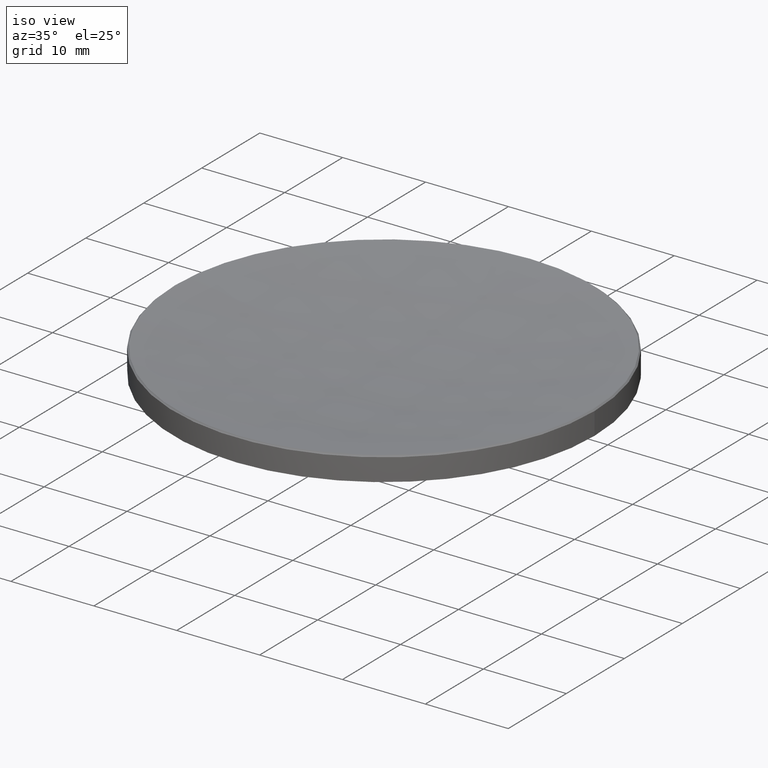
[diagram: clean part render]
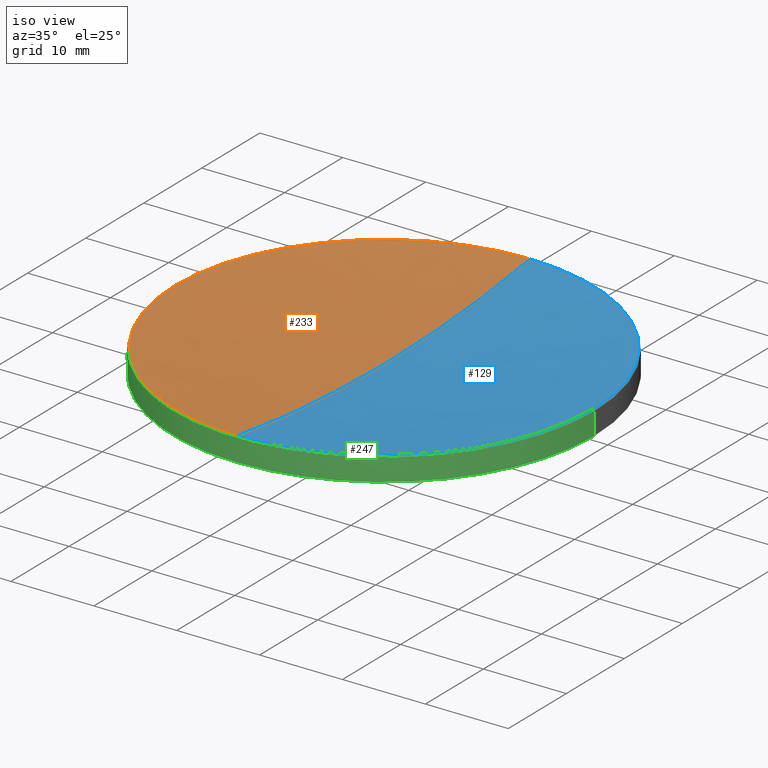
[diagram: same view with three faces highlighted in distinct colors, each labeled with its STEP entity id]
A machine part, iso view with three faces highlighted in distinct colors.
Their STEP definitions:

[orange] entity #233 — the highlighted spherical surface has radius 171.6 mm.
#5 = DIRECTION ( 'NONE',  ( 1.000000000000000000, 0.000000000000000000, 0.000000000000000000 ) ) ;
#48 = CARTESIAN_POINT ( 'NONE',  ( -25.22595727592940662, 0.000000000000000000, 15.87404272407055927 ) ) ;
#50 = CIRCLE ( 'NONE', #197, 171.5999999999999659 ) ;
#55 = DIRECTION ( 'NONE',  ( 0.000000000000000000, 1.000000000000000000, 0.000000000000000000 ) ) ;
#59 = ORIENTED_EDGE ( 'NONE', *, *, #227, .T. ) ;
#71 = DIRECTION ( 'NONE',  ( -1.000000000000000000, 1.224646799147353207E-16, 0.000000000000000000 ) ) ;
#76 = CIRCLE ( 'NONE', #277, 171.5999999999999659 ) ;
#87 = ORIENTED_EDGE ( 'NONE', *, *, #222, .T. ) ;
#91 = DIRECTION ( 'NONE',  ( -0.000000000000000000, -0.000000000000000000, 1.000000000000000000 ) ) ;
#94 = CARTESIAN_POINT ( 'NONE',  ( 0.000000000000000000, 0.000000000000000000, 15.87404272407055927 ) ) ;
#95 = DIRECTION ( 'NONE',  ( -1.224646799147353207E-16, -1.000000000000000000, 0.000000000000000000 ) ) ;
#103 = CIRCLE ( 'NONE', #136, 25.22595727592940662 ) ;
#116 = EDGE_CURVE ( 'NONE', #274, #215, #103, .T. ) ;
#117 = CIRCLE ( 'NONE', #150, 25.22595727592940662 ) ;
#118 = CARTESIAN_POINT ( 'NONE',  ( 0.000000000000000000, 0.000000000000000000, 185.6097522242018840 ) ) ;
#126 = ORIENTED_EDGE ( 'NONE', *, *, #116, .T. ) ;
#135 = DIRECTION ( 'NONE',  ( -1.000000000000000000, 0.000000000000000000, 0.000000000000000000 ) ) ;
#136 = AXIS2_PLACEMENT_3D ( 'NONE', #196, #91, #5 ) ;
#141 = ORIENTED_EDGE ( 'NONE', *, *, #157, .F. ) ;
#150 = AXIS2_PLACEMENT_3D ( 'NONE', #94, #170, #270 ) ;
#157 = EDGE_CURVE ( 'NONE', #273, #251, #50, .T. ) ;
#170 = DIRECTION ( 'NONE',  ( -0.000000000000000000, -0.000000000000000000, 1.000000000000000000 ) ) ;
#176 = DIRECTION ( 'NONE',  ( 0.000000000000000000, 0.000000000000000000, -1.000000000000000000 ) ) ;
#196 = CARTESIAN_POINT ( 'NONE',  ( 0.000000000000000000, 0.000000000000000000, 15.87404272407055927 ) ) ;
#197 = AXIS2_PLACEMENT_3D ( 'NONE', #281, #71, #95 ) ;
#203 = CARTESIAN_POINT ( 'NONE',  ( 0.000000000000000000, 1.050746953668428865E-14, 14.00975222420192168 ) ) ;
#205 = CARTESIAN_POINT ( 'NONE',  ( 0.000000000000000000, 25.22595727592939951, 15.87404272407055927 ) ) ;
#215 = VERTEX_POINT ( 'NONE', #48 ) ;
#221 = SPHERICAL_SURFACE ( 'NONE', #267, 171.5999999999999659 ) ;
#222 = EDGE_CURVE ( 'NONE', #215, #251, #117, .T. ) ;
#223 = CARTESIAN_POINT ( 'NONE',  ( 0.000000000000000000, 0.000000000000000000, 185.6097522242018840 ) ) ;
#224 = CARTESIAN_POINT ( 'NONE',  ( -3.089288783339482875E-15, -25.22595727592939951, 15.87404272407055927 ) ) ;
#227 = EDGE_CURVE ( 'NONE', #273, #274, #76, .T. ) ;
#233 = ADVANCED_FACE ( 'NONE', ( #248 ), #221, .F. ) ;
#246 = DIRECTION ( 'NONE',  ( 1.000000000000000000, 0.000000000000000000, 0.000000000000000000 ) ) ;
#248 = FACE_OUTER_BOUND ( 'NONE', #271, .T. ) ;
#251 = VERTEX_POINT ( 'NONE', #224 ) ;
#267 = AXIS2_PLACEMENT_3D ( 'NONE', #223, #135, #55 ) ;
#270 = DIRECTION ( 'NONE',  ( 1.000000000000000000, 0.000000000000000000, 0.000000000000000000 ) ) ;
#271 = EDGE_LOOP ( 'NONE', ( #141, #59, #126, #87 ) ) ;
#273 = VERTEX_POINT ( 'NONE', #203 ) ;
#274 = VERTEX_POINT ( 'NONE', #205 ) ;
#277 = AXIS2_PLACEMENT_3D ( 'NONE', #118, #246, #176 ) ;
#281 = CARTESIAN_POINT ( 'NONE',  ( 0.000000000000000000, 0.000000000000000000, 185.6097522242018840 ) ) ;

[blue] entity #129 — the highlighted spherical surface has radius 171.6 mm.
#2 = CARTESIAN_POINT ( 'NONE',  ( 25.22595727592940662, 3.099945826586880264E-15, 15.87404272407055927 ) ) ;
#17 = FACE_OUTER_BOUND ( 'NONE', #31, .T. ) ;
#18 = DIRECTION ( 'NONE',  ( 1.000000000000000000, 0.000000000000000000, 0.000000000000000000 ) ) ;
#29 = AXIS2_PLACEMENT_3D ( 'NONE', #110, #93, #18 ) ;
#31 = EDGE_LOOP ( 'NONE', ( #177, #228, #146, #86 ) ) ;
#50 = CIRCLE ( 'NONE', #197, 171.5999999999999659 ) ;
#65 = DIRECTION ( 'NONE',  ( -0.000000000000000000, -0.000000000000000000, 1.000000000000000000 ) ) ;
#71 = DIRECTION ( 'NONE',  ( -1.000000000000000000, 1.224646799147353207E-16, 0.000000000000000000 ) ) ;
#76 = CIRCLE ( 'NONE', #277, 171.5999999999999659 ) ;
#86 = ORIENTED_EDGE ( 'NONE', *, *, #92, .T. ) ;
#90 = CARTESIAN_POINT ( 'NONE',  ( 0.000000000000000000, 0.000000000000000000, 15.87404272407055927 ) ) ;
#92 = EDGE_CURVE ( 'NONE', #184, #274, #257, .T. ) ;
#93 = DIRECTION ( 'NONE',  ( -0.000000000000000000, -0.000000000000000000, 1.000000000000000000 ) ) ;
#95 = DIRECTION ( 'NONE',  ( -1.224646799147353207E-16, -1.000000000000000000, 0.000000000000000000 ) ) ;
#110 = CARTESIAN_POINT ( 'NONE',  ( 0.000000000000000000, 0.000000000000000000, 15.87404272407055927 ) ) ;
#118 = CARTESIAN_POINT ( 'NONE',  ( 0.000000000000000000, 0.000000000000000000, 185.6097522242018840 ) ) ;
#122 = AXIS2_PLACEMENT_3D ( 'NONE', #90, #65, #219 ) ;
#129 = ADVANCED_FACE ( 'NONE', ( #17 ), #217, .F. ) ;
#139 = AXIS2_PLACEMENT_3D ( 'NONE', #239, #264, #149 ) ;
#145 = EDGE_CURVE ( 'NONE', #251, #184, #168, .T. ) ;
#146 = ORIENTED_EDGE ( 'NONE', *, *, #145, .T. ) ;
#149 = DIRECTION ( 'NONE',  ( 0.000000000000000000, 1.000000000000000000, 0.000000000000000000 ) ) ;
#157 = EDGE_CURVE ( 'NONE', #273, #251, #50, .T. ) ;
#168 = CIRCLE ( 'NONE', #29, 25.22595727592940662 ) ;
#176 = DIRECTION ( 'NONE',  ( 0.000000000000000000, 0.000000000000000000, -1.000000000000000000 ) ) ;
#177 = ORIENTED_EDGE ( 'NONE', *, *, #227, .F. ) ;
#184 = VERTEX_POINT ( 'NONE', #2 ) ;
#197 = AXIS2_PLACEMENT_3D ( 'NONE', #281, #71, #95 ) ;
#203 = CARTESIAN_POINT ( 'NONE',  ( 0.000000000000000000, 1.050746953668428865E-14, 14.00975222420192168 ) ) ;
#205 = CARTESIAN_POINT ( 'NONE',  ( 0.000000000000000000, 25.22595727592939951, 15.87404272407055927 ) ) ;
#217 = SPHERICAL_SURFACE ( 'NONE', #139, 171.5999999999999659 ) ;
#219 = DIRECTION ( 'NONE',  ( 1.000000000000000000, 0.000000000000000000, 0.000000000000000000 ) ) ;
#224 = CARTESIAN_POINT ( 'NONE',  ( -3.089288783339482875E-15, -25.22595727592939951, 15.87404272407055927 ) ) ;
#227 = EDGE_CURVE ( 'NONE', #273, #274, #76, .T. ) ;
#228 = ORIENTED_EDGE ( 'NONE', *, *, #157, .T. ) ;
#239 = CARTESIAN_POINT ( 'NONE',  ( 0.000000000000000000, 0.000000000000000000, 185.6097522242018840 ) ) ;
#246 = DIRECTION ( 'NONE',  ( 1.000000000000000000, 0.000000000000000000, 0.000000000000000000 ) ) ;
#251 = VERTEX_POINT ( 'NONE', #224 ) ;
#257 = CIRCLE ( 'NONE', #122, 25.22595727592940662 ) ;
#264 = DIRECTION ( 'NONE',  ( -1.000000000000000000, 0.000000000000000000, 0.000000000000000000 ) ) ;
#273 = VERTEX_POINT ( 'NONE', #203 ) ;
#274 = VERTEX_POINT ( 'NONE', #205 ) ;
#277 = AXIS2_PLACEMENT_3D ( 'NONE', #118, #246, #176 ) ;
#281 = CARTESIAN_POINT ( 'NONE',  ( 0.000000000000000000, 0.000000000000000000, 185.6097522242018840 ) ) ;

[green] entity #247 — the highlighted cylindrical surface (partial cylindrical patch) has radius 25.4 mm, axis along (-0, -0, -1).
#3 = CARTESIAN_POINT ( 'NONE',  ( 25.39999999999999858, 3.110602869834276865E-15, 15.69999999999996376 ) ) ;
#6 = VECTOR ( 'NONE', #169, 1000.000000000000000 ) ;
#21 = VECTOR ( 'NONE', #74, 1000.000000000000000 ) ;
#24 = FACE_OUTER_BOUND ( 'NONE', #62, .T. ) ;
#30 = ORIENTED_EDGE ( 'NONE', *, *, #162, .T. ) ;
#39 = ORIENTED_EDGE ( 'NONE', *, *, #275, .T. ) ;
#51 = CARTESIAN_POINT ( 'NONE',  ( 0.000000000000000000, 0.000000000000000000, 13.00000000000000000 ) ) ;
#54 = CARTESIAN_POINT ( 'NONE',  ( -25.39999999999999858, 0.000000000000000000, 15.69999999999996376 ) ) ;
#56 = AXIS2_PLACEMENT_3D ( 'NONE', #199, #282, #242 ) ;
#62 = EDGE_LOOP ( 'NONE', ( #75, #105, #30, #144, #39 ) ) ;
#66 = CIRCLE ( 'NONE', #153, 25.39999999999999858 ) ;
#73 = EDGE_CURVE ( 'NONE', #187, #229, #66, .T. ) ;
#74 = DIRECTION ( 'NONE',  ( -0.000000000000000000, -0.000000000000000000, -1.000000000000000000 ) ) ;
#75 = ORIENTED_EDGE ( 'NONE', *, *, #250, .F. ) ;
#78 = DIRECTION ( 'NONE',  ( 1.000000000000000000, 0.000000000000000000, 0.000000000000000000 ) ) ;
#96 = CYLINDRICAL_SURFACE ( 'NONE', #133, 25.39999999999999858 ) ;
#98 = CARTESIAN_POINT ( 'NONE',  ( 25.39999999999999858, 3.110602869834276865E-15, 20.00000000000000000 ) ) ;
#102 = EDGE_CURVE ( 'NONE', #160, #161, #173, .T. ) ;
#105 = ORIENTED_EDGE ( 'NONE', *, *, #73, .T. ) ;
#113 = CARTESIAN_POINT ( 'NONE',  ( -25.39999999999999858, 0.000000000000000000, 20.00000000000000000 ) ) ;
#130 = CARTESIAN_POINT ( 'NONE',  ( -3.110602869834275682E-15, -25.39999999999998437, 12.99999999999999822 ) ) ;
#131 = DIRECTION ( 'NONE',  ( 1.000000000000000000, 0.000000000000000000, 0.000000000000000000 ) ) ;
#132 = LINE ( 'NONE', #113, #6 ) ;
#133 = AXIS2_PLACEMENT_3D ( 'NONE', #225, #137, #158 ) ;
#134 = CARTESIAN_POINT ( 'NONE',  ( 0.000000000000000000, 0.000000000000000000, 15.69999999999996376 ) ) ;
#137 = DIRECTION ( 'NONE',  ( -0.000000000000000000, -0.000000000000000000, -1.000000000000000000 ) ) ;
#144 = ORIENTED_EDGE ( 'NONE', *, *, #102, .T. ) ;
#152 = CARTESIAN_POINT ( 'NONE',  ( 25.39999999999999503, 3.110602869834276471E-15, 13.00000000000000000 ) ) ;
#153 = AXIS2_PLACEMENT_3D ( 'NONE', #134, #198, #131 ) ;
#158 = DIRECTION ( 'NONE',  ( -1.000000000000000000, 0.000000000000000000, 0.000000000000000000 ) ) ;
#160 = VERTEX_POINT ( 'NONE', #261 ) ;
#161 = VERTEX_POINT ( 'NONE', #130 ) ;
#162 = EDGE_CURVE ( 'NONE', #229, #160, #132, .T. ) ;
#169 = DIRECTION ( 'NONE',  ( -0.000000000000000000, -0.000000000000000000, -1.000000000000000000 ) ) ;
#173 = CIRCLE ( 'NONE', #56, 25.39999999999999503 ) ;
#174 = LINE ( 'NONE', #98, #21 ) ;
#180 = AXIS2_PLACEMENT_3D ( 'NONE', #51, #266, #78 ) ;
#187 = VERTEX_POINT ( 'NONE', #3 ) ;
#198 = DIRECTION ( 'NONE',  ( 0.000000000000000000, 0.000000000000000000, -1.000000000000000000 ) ) ;
#199 = CARTESIAN_POINT ( 'NONE',  ( 0.000000000000000000, 0.000000000000000000, 13.00000000000000000 ) ) ;
#210 = VERTEX_POINT ( 'NONE', #152 ) ;
#220 = CIRCLE ( 'NONE', #180, 25.39999999999999503 ) ;
#225 = CARTESIAN_POINT ( 'NONE',  ( 0.000000000000000000, 0.000000000000000000, 20.00000000000000000 ) ) ;
#229 = VERTEX_POINT ( 'NONE', #54 ) ;
#242 = DIRECTION ( 'NONE',  ( 1.000000000000000000, 0.000000000000000000, 0.000000000000000000 ) ) ;
#247 = ADVANCED_FACE ( 'NONE', ( #24 ), #96, .T. ) ;
#250 = EDGE_CURVE ( 'NONE', #187, #210, #174, .T. ) ;
#261 = CARTESIAN_POINT ( 'NONE',  ( -25.39999999999999503, 0.000000000000000000, 13.00000000000000000 ) ) ;
#266 = DIRECTION ( 'NONE',  ( -0.000000000000000000, -0.000000000000000000, 1.000000000000000000 ) ) ;
#275 = EDGE_CURVE ( 'NONE', #161, #210, #220, .T. ) ;
#282 = DIRECTION ( 'NONE',  ( -0.000000000000000000, -0.000000000000000000, 1.000000000000000000 ) ) ;